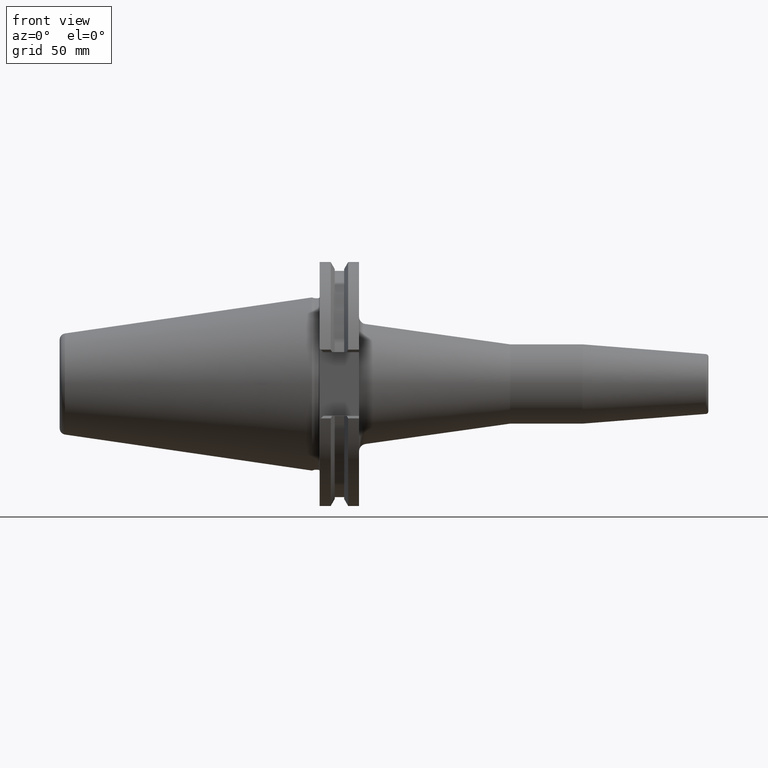
[diagram: clean part render]
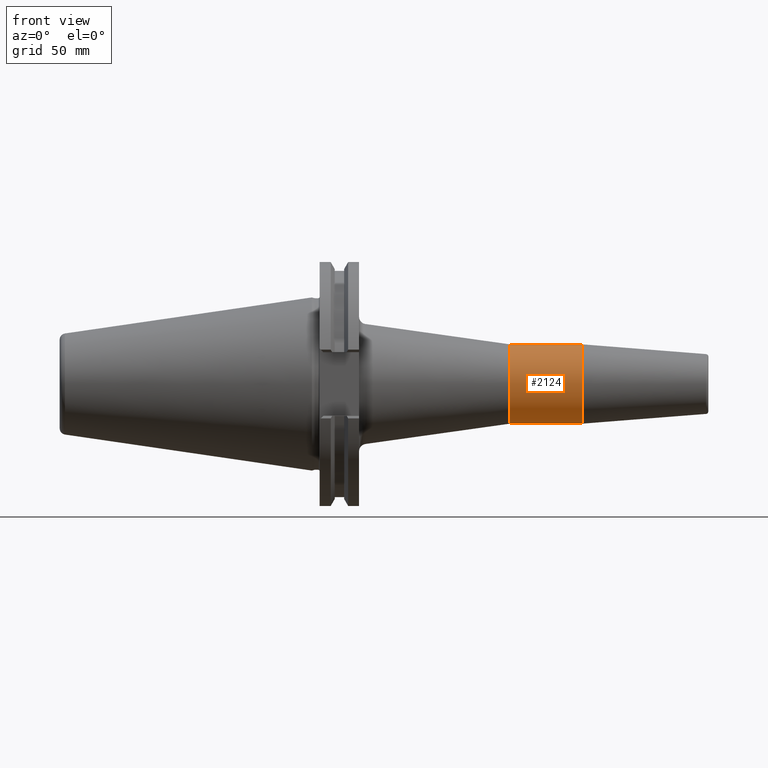
[diagram: same view with one face highlighted and labeled with its STEP entity id]
A machine part, front view. The second image highlights one B-rep face of the part: STEP entity #2124.
In plain terms, the highlighted cylindrical surface (partial cylindrical patch) has radius 16 mm, axis along (1, 0, 0).
Its self-contained STEP definition (entity closure, byte-faithful):
#494=DIRECTION('',(-1.E0,0.E0,0.E0));
#495=VECTOR('',#494,2.917518105530E1);
#496=CARTESIAN_POINT('',(1.091751810553E2,0.E0,-1.6E1));
#497=LINE('',#496,#495);
#498=DIRECTION('',(-1.E0,0.E0,0.E0));
#499=VECTOR('',#498,2.917518105530E1);
#500=CARTESIAN_POINT('',(1.091751810553E2,0.E0,1.6E1));
#501=LINE('',#500,#499);
#502=CARTESIAN_POINT('',(1.091751810553E2,0.E0,0.E0));
#503=DIRECTION('',(-1.E0,0.E0,0.E0));
#504=DIRECTION('',(0.E0,0.E0,-1.E0));
#505=AXIS2_PLACEMENT_3D('',#502,#503,#504);
#515=CARTESIAN_POINT('',(8.E1,0.E0,0.E0));
#516=DIRECTION('',(-1.E0,0.E0,0.E0));
#517=DIRECTION('',(0.E0,0.E0,-1.E0));
#518=AXIS2_PLACEMENT_3D('',#515,#516,#517);
#1317=CARTESIAN_POINT('',(1.091751810553E2,0.E0,-1.6E1));
#1318=VERTEX_POINT('',#1317);
#1319=CARTESIAN_POINT('',(8.E1,0.E0,-1.6E1));
#1320=VERTEX_POINT('',#1319);
#1347=CARTESIAN_POINT('',(1.091751810553E2,0.E0,1.6E1));
#1348=VERTEX_POINT('',#1347);
#1349=CARTESIAN_POINT('',(8.E1,0.E0,1.6E1));
#1350=VERTEX_POINT('',#1349);
#2112=CARTESIAN_POINT('',(1.20025E1,0.E0,0.E0));
#2113=DIRECTION('',(1.E0,0.E0,0.E0));
#2114=DIRECTION('',(0.E0,0.E0,1.E0));
#2115=AXIS2_PLACEMENT_3D('',#2112,#2113,#2114);
#2116=CYLINDRICAL_SURFACE('',#2115,1.6E1);
#2117=ORIENTED_EDGE('',*,*,#2102,.T.);
#2119=ORIENTED_EDGE('',*,*,#2118,.T.);
#2120=ORIENTED_EDGE('',*,*,#2105,.F.);
#2121=ORIENTED_EDGE('',*,*,#2076,.F.);
#2122=EDGE_LOOP('',(#2117,#2119,#2120,#2121));
#2123=FACE_OUTER_BOUND('',#2122,.F.);
#2124=ADVANCED_FACE('',(#2123),#2116,.T.);
#506=CIRCLE('',#505,1.6E1);
#519=CIRCLE('',#518,1.6E1);
#2076=EDGE_CURVE('',#1318,#1348,#506,.T.);
#2102=EDGE_CURVE('',#1318,#1320,#497,.T.);
#2105=EDGE_CURVE('',#1348,#1350,#501,.T.);
#2118=EDGE_CURVE('',#1320,#1350,#519,.T.);